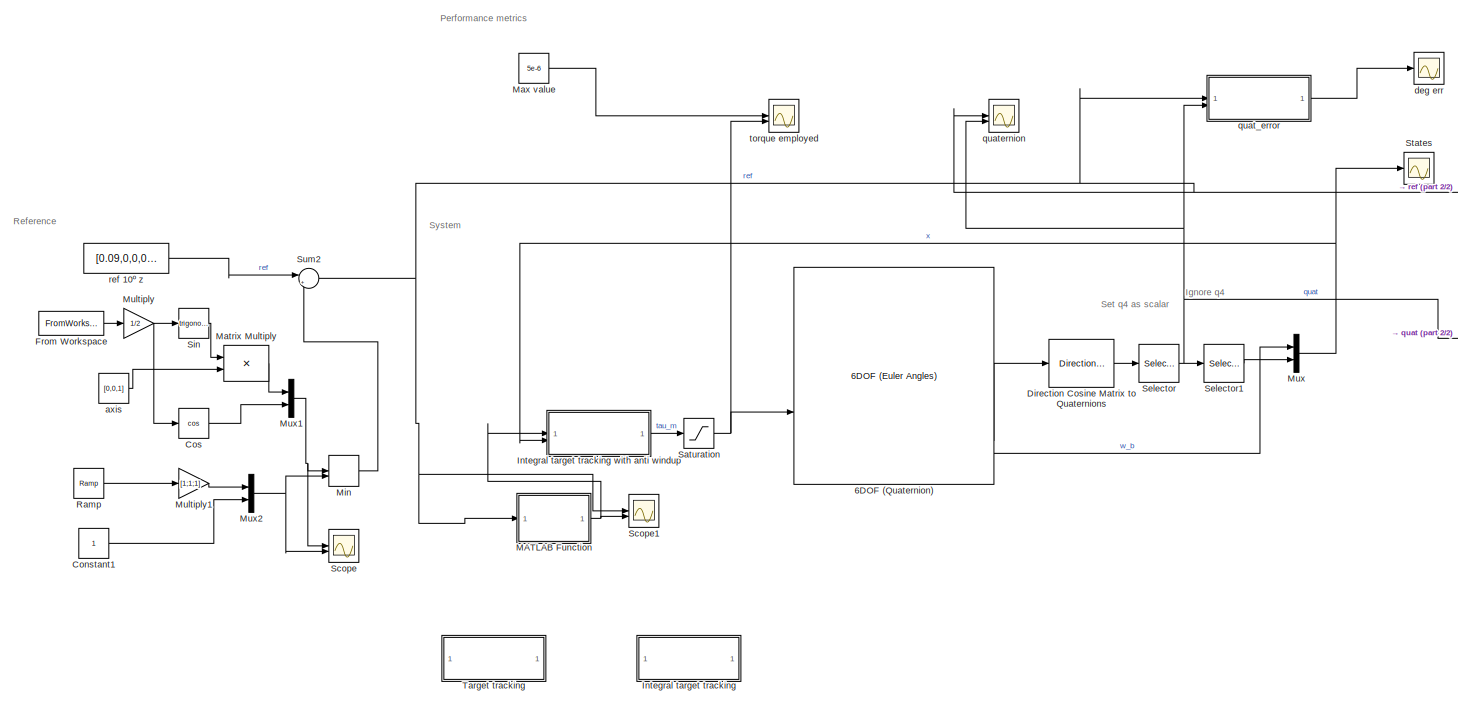
[diagram: root canvas - part 1/2, most of the canvas]
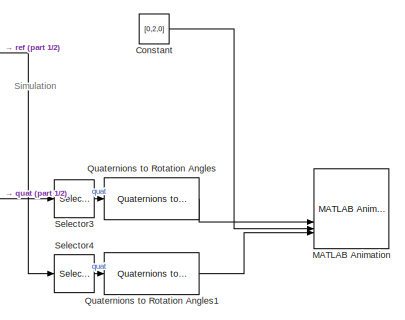
[diagram: root canvas - part 2/2, middle right region]
MODEL slx_6b1f5130cbd9
KIND model
CONFIG AbsTol = auto
CONFIG EnableMultiTasking = off
CONFIG FixedStep = auto
CONFIG MaxStep = auto
CONFIG MinStep = auto
CONFIG RelTol = 1e-3
CONFIG SampleTimeConstraint = Unconstrained
CONFIG SolverName = VariableStepAuto
CONFIG StartTime = 0.0
CONFIG StopTime = 1000
WORKSPACE source: mxarray member
WORKSPACE Ip = [0.0088 0 0 0 0.0088 0 0 0 0.0044]
WORKSPACE K = [-0.000443603406231 -1.70527086841e-22 -1.08514122647e-19 6.73781157753e-21 -0.000443603406231 -3.33029792061e-22 7.77483629526e-20 5.17001334298e-23 -0.000313682946636 -2.2360679775e-05 5.35166006497e-24 -5.39626121661e-21 ... (18 elements, 3x6)]
WORKSPACE K_slow = [-4.43592247475e-05 3.74861167684e-22 -1.03139362024e-24 2.07136254246e-21 -4.43592247475e-05 4.10125083945e-24 7.30622127449e-24 2.96582119032e-22 -3.13667165974e-05 -2.2360679775e-07 2.07897257759e-24 -4.97747355618e-27 ... (18 elements, 3x6)]
WORKSPACE Ki_i = [-1e-07 1.66568758681e-22 -1.68097328748e-23 1.31508876303e-22 -1e-07 -1.12576448904e-21 4.43764123319e-23 -9.68175010598e-23 -1e-07]
WORKSPACE Ki_p = [-0.00314098844256 -1.74081313278e-18 -5.32920110304e-19 -4.89320319717e-18 -0.00314098844256 -3.93401290576e-19 2.29761483152e-20 7.14962202736e-18 -0.00197885483683 -0.00112111345413 -6.22741736937e-19 -1.9860344496e-19 ... (18 elements, 3x6)]
WORKSPACE M = 2
WORKSPACE Nu = [0 0 0 0 0 0 0 0 0]
WORKSPACE Nx = [0 0 0 1 0 0 0 0 0 0 1 0 ... (18 elements, 6x3)]
WORKSPACE tracking_angle_required = [0 0.692021234823 1.38404246965 2.07606370447 2.76808493929 3.46010617411 4.15212740894 4.84414864376 5.53616987858 6.2281911134 6.92021234823 7.61223358305 ... (2000 elements, 1000x2)]
BLOCK [Reference] 6DOF (Quaternion)  REF=shared6dof/6DOF (Euler Angles)
  LibrarySourceBlock = aerolib6dof2/6DOF (Quaternion)
  SourceBlock = shared6dof/6DOF (Euler Angles)
  SourceType = 6DOF EoM (Body Axis)
BLOCK [Constant] Constant
  Value = [0,2,0]
BLOCK [Constant] Constant1
BLOCK [Trigonometry] Cos
  Operator = cos
BLOCK [Reference] Direction Cosine Matrix to Quaternions  REF=sharedtransform/Direction Cosine Matrix 
to Quaternions
  LibrarySourceBlock = aerolibtransform2/Direction Cosine Matrix \nto Quaternions
  SourceBlock = sharedtransform/Direction Cosine Matrix \nto Quaternions
  SourceType = DCM2Quaternion
BLOCK [FromWorkspace] From Workspace
  SampleTime = -1
  VariableName = tracking_angle_required
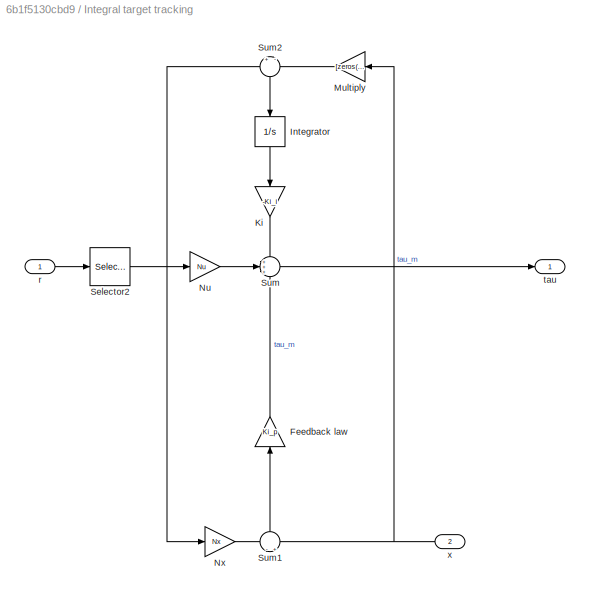
BLOCK [SubSystem] Integral target tracking
  Commented = on
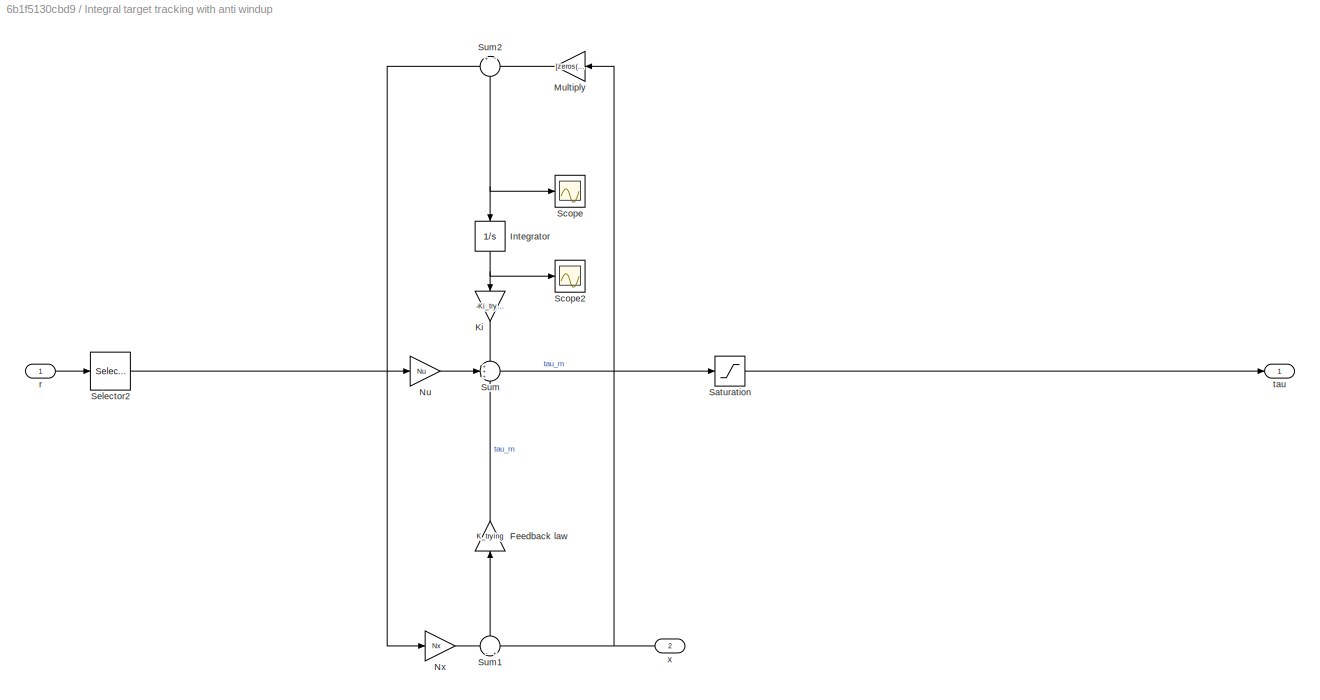
BLOCK [SubSystem] Integral target tracking with anti windup
BLOCK [Gain] Integral target tracking with anti windup/Feedback law
  Gain = K_trying
  Multiplication = Matrix(K*u)
  NameLocation = right
BLOCK [Integrator] Integral target tracking with anti windup/Integrator
  LimitOutput = on
  LowerSaturationLimit = -5000
  NameLocation = left
  UpperSaturationLimit = 4000
BLOCK [Gain] Integral target tracking with anti windup/Ki
  Gain = -Ki_trying
  Multiplication = Matrix(K*u)
  NameLocation = left
BLOCK [Gain] Integral target tracking with anti windup/Multiply
  Gain = [zeros(3),eye(3)]
  Multiplication = Matrix(K*u)
  NameLocation = top
BLOCK [Gain] Integral target tracking with anti windup/Nu
  Gain = Nu
  Multiplication = Matrix(K*u)
BLOCK [Gain] Integral target tracking with anti windup/Nx
  Gain = Nx
  Multiplication = Matrix(K*u)
BLOCK [Saturate] Integral target tracking with anti windup/Saturation
  Commented = through
  LowerLimit = -5e-6
  UpperLimit = 5e-6
BLOCK [Scope] Integral target tracking with anti windup/Scope
  Floating = off
  NumInputPorts = 1
  ScopeSpecificationString = Simulink.scopes.TimeScopeBlockCfg('CurrentConfiguration', extmgr.ConfigurationSet(extmgr.Configuration('Core','General UI',true),extmgr.Configuration('Core','Source UI',true),extmgr.Configuration('Sources','WiredSimulink',true,'DataLoggingVariableName','ScopeData1'),extmgr.Configuration('Visuals','Time Domain',true,'SerializedDisplays',{struct('MinYLimReal','-0.07988','MaxYLimReal','0.07279','YLab...<+1414ch>
BLOCK [Scope] Integral target tracking with anti windup/Scope2
  Floating = off
  NumInputPorts = 1
  ScopeSpecificationString = Simulink.scopes.TimeScopeBlockCfg('CurrentConfiguration', extmgr.ConfigurationSet(extmgr.Configuration('Core','General UI',true),extmgr.Configuration('Core','Source UI',true),extmgr.Configuration('Sources','WiredSimulink',true,'DataLoggingVariableName','ScopeData3'),extmgr.Configuration('Visuals','Time Domain',true,'SerializedDisplays',{struct('MinYLimReal','-1.05841','MaxYLimReal','1.55299','YLab...<+1433ch>
BLOCK [Selector] Integral target tracking with anti windup/Selector2
  IndexOptions = Index vector (dialog)
  Indices = [1 2 3 ]
  InputPortWidth = 4
  OutputSizes = 1
BLOCK [Sum] Integral target tracking with anti windup/Sum
  Inputs = +++
BLOCK [Sum] Integral target tracking with anti windup/Sum1
  Inputs = -|+
  NameLocation = right
BLOCK [Sum] Integral target tracking with anti windup/Sum2
  Inputs = +|-
  NameLocation = left
BLOCK [Inport] Integral target tracking with anti windup/r
BLOCK [Outport] Integral target tracking with anti windup/tau
BLOCK [Inport] Integral target tracking with anti windup/x
  NameLocation = top
  Port = 2
BLOCK [Gain] Integral target tracking/Feedback law
  Gain = Ki_p
  Multiplication = Matrix(K*u)
  NameLocation = right
BLOCK [Integrator] Integral target tracking/Integrator
  NameLocation = left
BLOCK [Gain] Integral target tracking/Ki
  Gain = -Ki_i
  Multiplication = Matrix(K*u)
  NameLocation = left
BLOCK [Gain] Integral target tracking/Multiply
  Gain = [zeros(3),eye(3)]
  Multiplication = Matrix(K*u)
  NameLocation = top
BLOCK [Gain] Integral target tracking/Nu
  Gain = Nu
  Multiplication = Matrix(K*u)
BLOCK [Gain] Integral target tracking/Nx
  Gain = Nx
  Multiplication = Matrix(K*u)
BLOCK [Selector] Integral target tracking/Selector2
  IndexOptions = Index vector (dialog)
  Indices = [1 2 3 ]
  InputPortWidth = 4
  OutputSizes = 1
BLOCK [Sum] Integral target tracking/Sum
  Inputs = +++
BLOCK [Sum] Integral target tracking/Sum1
  Inputs = -|+
  NameLocation = right
BLOCK [Sum] Integral target tracking/Sum2
  Inputs = +|-
  NameLocation = left
BLOCK [Inport] Integral target tracking/r
BLOCK [Outport] Integral target tracking/tau
BLOCK [Inport] Integral target tracking/x
  NameLocation = top
  Port = 2
BLOCK [Reference] MATLAB Animation  REF=aerolibanim/MATLAB
Animation
  SourceBlock = aerolibanim/MATLAB\nAnimation
  SourceType = AeroMATLABAnimation
  Tag = Matlab Animation 6 DOF
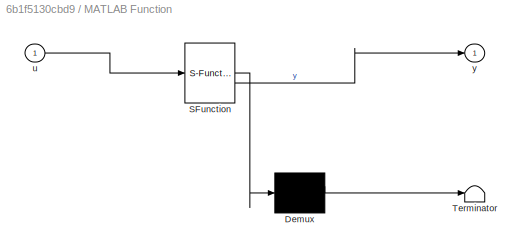
BLOCK [SubSystem] MATLAB Function
  ErrorFcn = Stateflow.Translate.translate
  PermitHierarchicalResolution = ExplicitOnly
  SFBlockType = MATLAB Function
  SystemSampleTime = 0.2
  TreatAsAtomicUnit = on
BLOCK [Demux] MATLAB Function/ Demux 
  Outputs = 1
BLOCK [S-Function] MATLAB Function/ SFunction 
  EnableBusSupport = on
  FunctionName = sf_sfun
  PortCounts = [1 2]
  SFcnIsStateOwnerBlock = off
  SFunctionDeploymentMode = off
  Tag = Stateflow S-Function 2
BLOCK [Terminator] MATLAB Function/ Terminator 
BLOCK [Inport] MATLAB Function/u
BLOCK [Outport] MATLAB Function/y
BLOCK [Product] Matrix Multiply
BLOCK [Constant] Max value
  Value = 5e-6
BLOCK [MinMax] Min
  Inputs = 2
BLOCK [Gain] Multiply
  Gain = 1/2
BLOCK [Gain] Multiply1
  Gain = [1;1;1]
  Multiplication = Matrix(K*u)
BLOCK [Mux] Mux
  DisplayOption = bar
  Inputs = 2
BLOCK [Mux] Mux1
  DisplayOption = bar
  Inputs = 2
BLOCK [Mux] Mux2
  DisplayOption = bar
  Inputs = 2
BLOCK [Reference] Quaternions to Rotation Angles  REF=sharedtransform/Quaternions to Rotation Angles
  AttributesFormatString = Rotation Order: %<rotationOrder>
  LibrarySourceBlock = aerolibtransform2/Quaternions to Rotation Angles
  SourceBlock = sharedtransform/Quaternions to Rotation Angles
  SourceType = Quat2Ang
BLOCK [Reference] Quaternions to Rotation Angles1  REF=sharedtransform/Quaternions to Rotation Angles
  AttributesFormatString = Rotation Order: %<rotationOrder>
  LibrarySourceBlock = aerolibtransform2/Quaternions to Rotation Angles
  SourceBlock = sharedtransform/Quaternions to Rotation Angles
  SourceType = Quat2Ang
BLOCK [Reference] Ramp  REF=simulink/Sources/Ramp
  SourceBlock = simulink/Sources/Ramp
  SourceType = Ramp
BLOCK [Saturate] Saturation
  LowerLimit = -5e-6
  UpperLimit = 5e-6
BLOCK [Scope] Scope
  Floating = off
  NumInputPorts = 2
  ScopeSpecificationString = Simulink.scopes.TimeScopeBlockCfg('CurrentConfiguration', extmgr.ConfigurationSet(extmgr.Configuration('Core','General UI',true),extmgr.Configuration('Core','Source UI',true),extmgr.Configuration('Sources','WiredSimulink',true,'DataLoggingVariableName','ScopeData4'),extmgr.Configuration('Visuals','Time Domain',true,'SerializedDisplays',{struct('MinYLimReal','-1.6293','MaxYLimReal','9.06992','YLabe...<+1655ch>
BLOCK [Scope] Scope1
  Floating = off
  NumInputPorts = 2
  ScopeSpecificationString = Simulink.scopes.TimeScopeBlockCfg('CurrentConfiguration', extmgr.ConfigurationSet(extmgr.Configuration('Core','General UI',true),extmgr.Configuration('Core','Source UI',true),extmgr.Configuration('Sources','WiredSimulink',true,'DataLoggingVariableName','ScopeData1'),extmgr.Configuration('Visuals','Time Domain',true,'SerializedDisplays',{struct('MinYLimReal','-0.7543','MaxYLimReal','1.19491','YLabe...<+1724ch>
BLOCK [Selector] Selector
  IndexOptions = Index vector (dialog)
  Indices = [2 3 4 1 ]
  InputPortWidth = 4
  OutputSizes = 1
BLOCK [Selector] Selector1
  IndexOptions = Index vector (dialog)
  Indices = [1 2 3 ]
  InputPortWidth = 4
  OutputSizes = 1
BLOCK [Selector] Selector3
  IndexOptions = Index vector (dialog)
  Indices = [4 1 2 3 ]
  InputPortWidth = 4
  OutputSizes = 1
BLOCK [Selector] Selector4
  IndexOptions = Index vector (dialog)
  Indices = [4 1 2 3 ]
  InputPortWidth = 4
  OutputSizes = 1
BLOCK [Trigonometry] Sin
BLOCK [Scope] States
  Floating = off
  NumInputPorts = 1
  ScopeSpecificationString = Simulink.scopes.TimeScopeBlockCfg('CurrentConfiguration', extmgr.ConfigurationSet(extmgr.Configuration('Core','General UI',true),extmgr.Configuration('Core','Source UI',true),extmgr.Configuration('Sources','WiredSimulink',true),extmgr.Configuration('Visuals','Time Domain',true,'SerializedDisplays',{struct('MinYLimReal','-0.72527','MaxYLimReal','0.93361','YLabelReal','','MinYLimMag','0.00000','MaxY...<+1563ch>
BLOCK [Sum] Sum2
  Inputs = |++
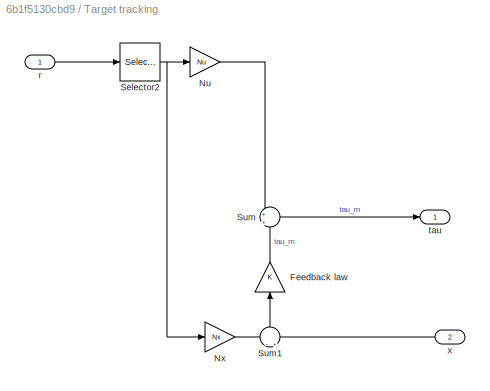
BLOCK [SubSystem] Target tracking
  Commented = on
BLOCK [Gain] Target tracking/Feedback law
  Gain = K
  Multiplication = Matrix(K*u)
  NameLocation = right
BLOCK [Gain] Target tracking/Nu
  Gain = Nu
  Multiplication = Matrix(K*u)
BLOCK [Gain] Target tracking/Nx
  Gain = Nx
  Multiplication = Matrix(K*u)
BLOCK [Selector] Target tracking/Selector2
  IndexOptions = Index vector (dialog)
  Indices = [1 2 3 ]
  InputPortWidth = 4
  OutputSizes = 1
BLOCK [Sum] Target tracking/Sum
  Inputs = +|+
BLOCK [Sum] Target tracking/Sum1
  Inputs = -|+
  NameLocation = right
BLOCK [Inport] Target tracking/r
BLOCK [Outport] Target tracking/tau
BLOCK [Inport] Target tracking/x
  NameLocation = top
  Port = 2
BLOCK [Constant] axis
  Value = [0,0,1]
BLOCK [Scope] deg err
  Floating = off
  NumInputPorts = 1
  ScopeSpecificationString = Simulink.scopes.TimeScopeBlockCfg('CurrentConfiguration', extmgr.ConfigurationSet(extmgr.Configuration('Core','General UI',true),extmgr.Configuration('Core','Source UI',true),extmgr.Configuration('Sources','WiredSimulink',true,'DataLoggingVariableName','ScopeData5'),extmgr.Configuration('Visuals','Time Domain',true,'SerializedDisplays',{struct('MinYLimReal','-1.28725','MaxYLimReal','1.83973','YLab...<+1596ch>
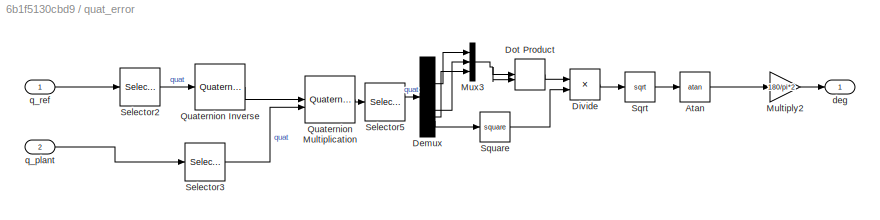
BLOCK [SubSystem] quat_error
BLOCK [Trigonometry] quat_error/Atan
  Operator = atan
BLOCK [Demux] quat_error/Demux
BLOCK [Product] quat_error/Divide
  Inputs = */
BLOCK [DotProduct] quat_error/Dot Product
  OutDataTypeStr = Inherit: Inherit via internal rule
BLOCK [Gain] quat_error/Multiply2
  Gain = 180/pi*2
BLOCK [Mux] quat_error/Mux3
  DisplayOption = bar
  Inputs = 3
BLOCK [Reference] quat_error/Quaternion Inverse  REF=aerolibutil/Quaternion
Inverse
  SourceBlock = aerolibutil/Quaternion\nInverse
  SourceType = Quaternion Inverse
BLOCK [Reference] quat_error/Quaternion Multiplication  REF=aerolibutil/Quaternion
Multiplication
  SourceBlock = aerolibutil/Quaternion\nMultiplication
  SourceType = Quaternion Multiplication
BLOCK [Selector] quat_error/Selector2
  IndexOptions = Index vector (dialog)
  Indices = [4 1 2 3 ]
  InputPortWidth = 4
  OutputSizes = 1
BLOCK [Selector] quat_error/Selector3
  IndexOptions = Index vector (dialog)
  Indices = [4 1 2 3 ]
  InputPortWidth = 4
  OutputSizes = 1
BLOCK [Selector] quat_error/Selector5
  IndexOptions = Index vector (dialog)
  Indices = [2 3 4 1 ]
  InputPortWidth = 4
  OutputSizes = 1
BLOCK [Sqrt] quat_error/Sqrt
BLOCK [Math] quat_error/Square
  Operator = square
BLOCK [Outport] quat_error/deg
BLOCK [Inport] quat_error/q_plant
  Port = 2
BLOCK [Inport] quat_error/q_ref
BLOCK [Scope] quaternion
  Floating = off
  NumInputPorts = 2
  ScopeSpecificationString = Simulink.scopes.TimeScopeBlockCfg('CurrentConfiguration', extmgr.ConfigurationSet(extmgr.Configuration('Core','General UI',true),extmgr.Configuration('Core','Source UI',true),extmgr.Configuration('Sources','WiredSimulink',true,'DataLoggingVariableName','ScopeData2'),extmgr.Configuration('Visuals','Time Domain',true,'SerializedDisplays',{struct('MinYLimReal','-0.69904','MaxYLimReal','1.18878','YLab...<+1700ch>
BLOCK [Constant] ref 10º z
  Commented = on
  Value = [0.09,0,0,0.99]'
BLOCK [Scope] torque employed
  Floating = off
  NameLocation = top
  NumInputPorts = 2
  ScopeSpecificationString = Simulink.scopes.TimeScopeBlockCfg('CurrentConfiguration', extmgr.ConfigurationSet(extmgr.Configuration('Core','General UI',true),extmgr.Configuration('Core','Source UI',true),extmgr.Configuration('Sources','WiredSimulink',true,'DataLoggingVariableName','ScopeData1'),extmgr.Configuration('Visuals','Time Domain',true,'SerializedDisplays',{struct('MinYLimReal','-0.000013','MaxYLimReal','0.000013','YL...<+1631ch>
ANNOTATION (root): Ignore q4
ANNOTATION (root): Performance metrics
ANNOTATION (root): Reference
ANNOTATION (root): Set q4 as scalar
ANNOTATION (root): Simulation
ANNOTATION (root): System
LINE 6DOF (Quaternion):4 -> Direction Cosine Matrix to Quaternions:1
LINE 6DOF (Quaternion):6 -> Mux:1
LINE Constant1:1 -> Mux2:2
LINE Constant:1 -> MATLAB Animation:3
LINE Cos:1 -> Mux1:2
LINE Direction Cosine Matrix to Quaternions:1 -> Selector:1
LINE From Workspace:1 -> Multiply:1
LINE Integral target tracking with anti windup/Feedback law:1 -> Integral target tracking with anti windup/Sum:3
NET Integral target tracking with anti windup/Integrator:1 -> Integral target tracking with anti windup/Ki:1, Integral target tracking with anti windup/Scope2:1
LINE Integral target tracking with anti windup/Ki:1 -> Integral target tracking with anti windup/Sum:1
LINE Integral target tracking with anti windup/Multiply:1 -> Integral target tracking with anti windup/Sum2:2
LINE Integral target tracking with anti windup/Nu:1 -> Integral target tracking with anti windup/Sum:2
LINE Integral target tracking with anti windup/Nx:1 -> Integral target tracking with anti windup/Sum1:1
LINE Integral target tracking with anti windup/Saturation:1 -> Integral target tracking with anti windup/tau:1
NET Integral target tracking with anti windup/Selector2:1 -> Integral target tracking with anti windup/Nu:1, Integral target tracking with anti windup/Nx:1, Integral target tracking with anti windup/Sum2:1
LINE Integral target tracking with anti windup/Sum1:1 -> Integral target tracking with anti windup/Feedback law:1
NET Integral target tracking with anti windup/Sum2:1 -> Integral target tracking with anti windup/Integrator:1, Integral target tracking with anti windup/Scope:1
LINE Integral target tracking with anti windup/Sum:1 -> Integral target tracking with anti windup/Saturation:1
LINE Integral target tracking with anti windup/r:1 -> Integral target tracking with anti windup/Selector2:1
NET Integral target tracking with anti windup/x:1 -> Integral target tracking with anti windup/Multiply:1, Integral target tracking with anti windup/Sum1:2
LINE Integral target tracking with anti windup:1 -> Saturation:1
LINE Integral target tracking/Feedback law:1 -> Integral target tracking/Sum:3
LINE Integral target tracking/Integrator:1 -> Integral target tracking/Ki:1
LINE Integral target tracking/Ki:1 -> Integral target tracking/Sum:1
LINE Integral target tracking/Multiply:1 -> Integral target tracking/Sum2:2
LINE Integral target tracking/Nu:1 -> Integral target tracking/Sum:2
LINE Integral target tracking/Nx:1 -> Integral target tracking/Sum1:1
NET Integral target tracking/Selector2:1 -> Integral target tracking/Nu:1, Integral target tracking/Nx:1, Integral target tracking/Sum2:1
LINE Integral target tracking/Sum1:1 -> Integral target tracking/Feedback law:1
LINE Integral target tracking/Sum2:1 -> Integral target tracking/Integrator:1
LINE Integral target tracking/Sum:1 -> Integral target tracking/tau:1
LINE Integral target tracking/r:1 -> Integral target tracking/Selector2:1
NET Integral target tracking/x:1 -> Integral target tracking/Multiply:1, Integral target tracking/Sum1:2
NET MATLAB Function:1 -> Integral target tracking with anti windup:1, Scope1:2
LINE Matrix Multiply:1 -> Mux1:1
LINE Max value:1 -> torque employed:1
LINE Min:1 -> Sum2:2
LINE Multiply1:1 -> Mux2:1
NET Multiply:1 -> Cos:1, Sin:1
NET Mux1:1 -> Min:1, Scope:1
NET Mux2:1 -> Min:2, Scope:2
NET Mux:1 -> Integral target tracking with anti windup:2, States:1
LINE Quaternions to Rotation Angles1:1 -> MATLAB Animation:4
LINE Quaternions to Rotation Angles:1 -> MATLAB Animation:2
LINE Ramp:1 -> Multiply1:1
NET Saturation:1 -> 6DOF (Quaternion):2, torque employed:2
LINE Selector1:1 -> Mux:2
LINE Selector3:1 -> Quaternions to Rotation Angles:1
LINE Selector4:1 -> Quaternions to Rotation Angles1:1
NET Selector:1 -> Selector1:1, Selector3:1, quat_error:2, quaternion:2
LINE Sin:1 -> Matrix Multiply:1
NET Sum2:1 -> MATLAB Function:1, Scope1:1, Selector4:1, quat_error:1, quaternion:1
LINE Target tracking/Feedback law:1 -> Target tracking/Sum:2
LINE Target tracking/Nu:1 -> Target tracking/Sum:1
LINE Target tracking/Nx:1 -> Target tracking/Sum1:1
NET Target tracking/Selector2:1 -> Target tracking/Nu:1, Target tracking/Nx:1
LINE Target tracking/Sum1:1 -> Target tracking/Feedback law:1
LINE Target tracking/Sum:1 -> Target tracking/tau:1
LINE Target tracking/r:1 -> Target tracking/Selector2:1
LINE Target tracking/x:1 -> Target tracking/Sum1:2
LINE axis:1 -> Matrix Multiply:2
LINE quat_error/Atan:1 -> quat_error/Multiply2:1
LINE quat_error/Demux:1 -> quat_error/Mux3:1
LINE quat_error/Demux:2 -> quat_error/Mux3:2
LINE quat_error/Demux:3 -> quat_error/Mux3:3
LINE quat_error/Demux:4 -> quat_error/Square:1
LINE quat_error/Divide:1 -> quat_error/Sqrt:1
LINE quat_error/Dot Product:1 -> quat_error/Divide:1
LINE quat_error/Multiply2:1 -> quat_error/deg:1
NET quat_error/Mux3:1 -> quat_error/Dot Product:1, quat_error/Dot Product:2
LINE quat_error/Quaternion Inverse:1 -> quat_error/Quaternion Multiplication:1
LINE quat_error/Quaternion Multiplication:1 -> quat_error/Selector5:1
LINE quat_error/Selector2:1 -> quat_error/Quaternion Inverse:1
LINE quat_error/Selector3:1 -> quat_error/Quaternion Multiplication:2
LINE quat_error/Selector5:1 -> quat_error/Demux:1
LINE quat_error/Sqrt:1 -> quat_error/Atan:1
LINE quat_error/Square:1 -> quat_error/Divide:2
LINE quat_error/q_plant:1 -> quat_error/Selector3:1
LINE quat_error/q_ref:1 -> quat_error/Selector2:1
LINE quat_error:1 -> deg err:1
LINE ref 10º z:1 -> Sum2:1
note: NET lines group one-source signal fan-out (src -> all destinations, sorted); 1:1 wires keep LINE
CHART MATLAB Function states=1 transitions=1
  STATE_LABEL 'eML_blk_kernel()'
  STATE_LABEL "SCRIPT:\nfunction y = fcn(u)\n    persistent u_bef;\n    if isempty(u_bef)\n        u_bef =[0,0,0,1]'; \n    end\n    slope = 0.01;\n    fs = 5;\n    if norm(u-u_bef)>slope/fs\n        u = u_bef + slope/fs*(u-u_bef)/norm(u-u_bef);\n    end\n     u_bef = u;\ny = u;\n"
CHART  states=0 transitions=0
